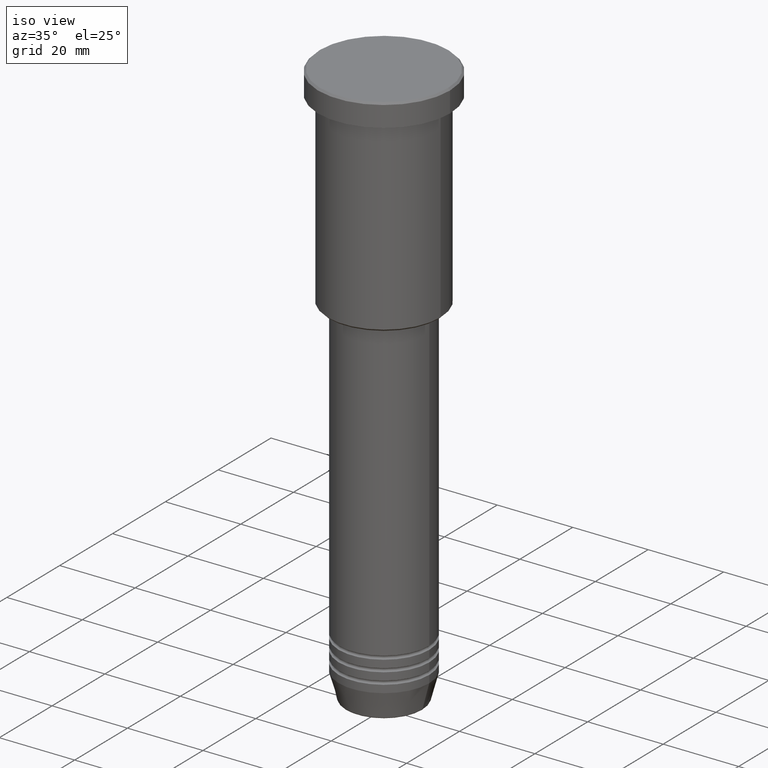
[diagram: clean part render]
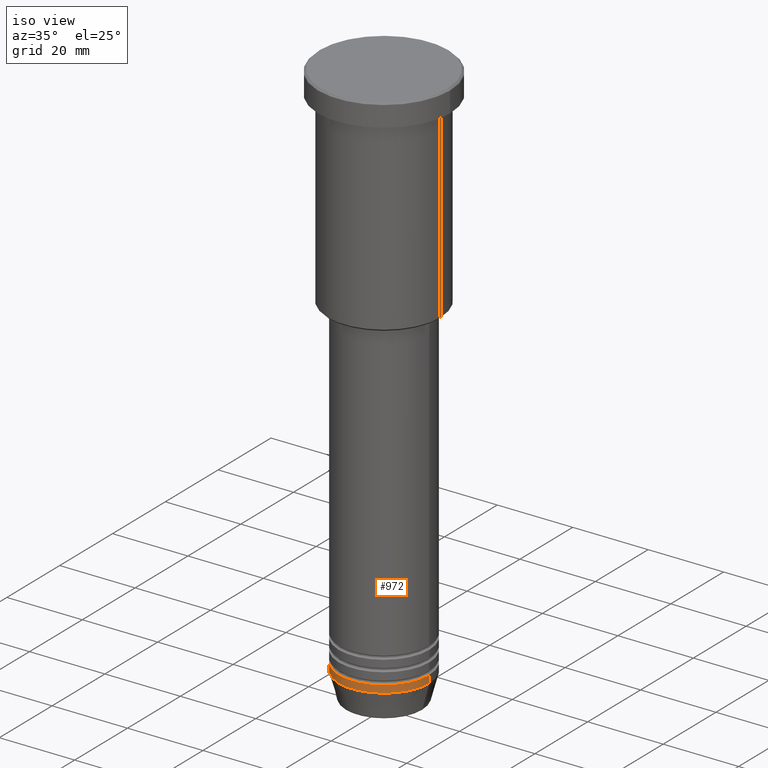
[diagram: same view with one face highlighted and labeled with its STEP entity id]
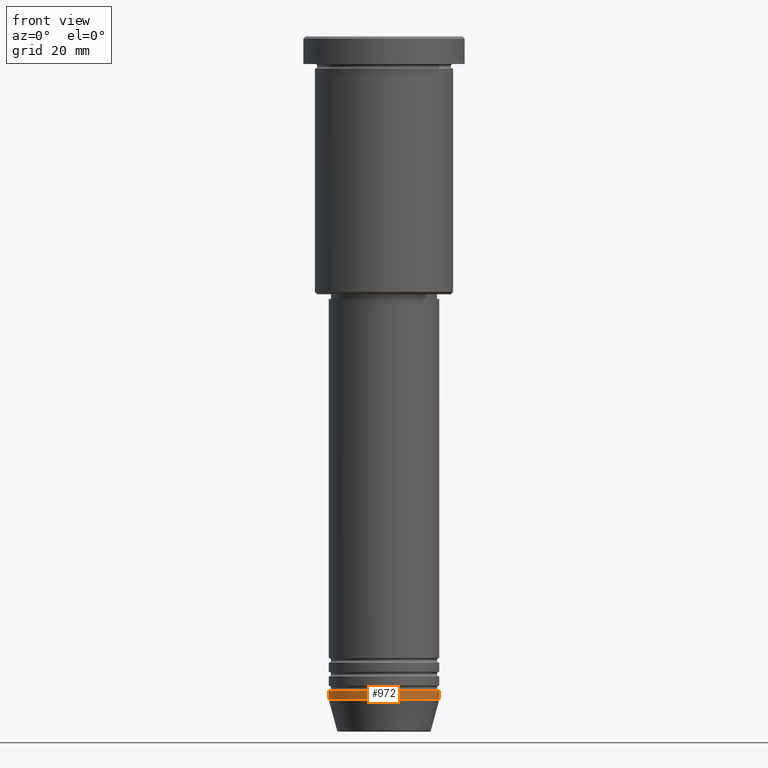
[diagram: same view with one face highlighted and labeled with its STEP entity id]
A machine part, iso view. The second image highlights one B-rep face of the part: STEP entity #972.
A second angle (front view) of the same face is appended — the face is thin or edge-on in the first view.
In plain terms, the highlighted cylindrical surface (partial cylindrical patch) has radius 12 mm, axis along (-0, -0, 1).
Its self-contained STEP definition (entity closure, byte-faithful):
#12 = DIRECTION ( 'NONE',  ( -0.000000000000000000, -0.000000000000000000, 1.000000000000000000 ) ) ;
#73 = CARTESIAN_POINT ( 'NONE',  ( -12.00000000000000000, 1.469576158976823947E-15, 0.000000000000000000 ) ) ;
#75 = EDGE_CURVE ( 'NONE', #247, #775, #1056, .T. ) ;
#101 = CARTESIAN_POINT ( 'NONE',  ( -12.00000000000000000, 1.469576158976823947E-15, -144.0000000000000284 ) ) ;
#147 = DIRECTION ( 'NONE',  ( -0.000000000000000000, -0.000000000000000000, 1.000000000000000000 ) ) ;
#168 = CARTESIAN_POINT ( 'NONE',  ( -12.00000000000000000, 1.469576158976823947E-15, -142.0000000000000284 ) ) ;
#189 = VERTEX_POINT ( 'NONE', #168 ) ;
#211 = ORIENTED_EDGE ( 'NONE', *, *, #237, .F. ) ;
#237 = EDGE_CURVE ( 'NONE', #189, #775, #842, .T. ) ;
#239 = ORIENTED_EDGE ( 'NONE', *, *, #75, .T. ) ;
#247 = VERTEX_POINT ( 'NONE', #579 ) ;
#256 = VECTOR ( 'NONE', #1057, 1000.000000000000000 ) ;
#263 = CARTESIAN_POINT ( 'NONE',  ( 12.00000000000000000, 0.000000000000000000, 0.000000000000000000 ) ) ;
#265 = ORIENTED_EDGE ( 'NONE', *, *, #994, .F. ) ;
#302 = DIRECTION ( 'NONE',  ( 1.000000000000000000, 0.000000000000000000, 0.000000000000000000 ) ) ;
#366 = AXIS2_PLACEMENT_3D ( 'NONE', #1170, #147, #412 ) ;
#412 = DIRECTION ( 'NONE',  ( 1.000000000000000000, 0.000000000000000000, 0.000000000000000000 ) ) ;
#424 = EDGE_CURVE ( 'NONE', #1085, #247, #801, .T. ) ;
#435 = CARTESIAN_POINT ( 'NONE',  ( 12.00000000000000000, 0.000000000000000000, -142.0000000000000284 ) ) ;
#439 = AXIS2_PLACEMENT_3D ( 'NONE', #543, #1063, #909 ) ;
#543 = CARTESIAN_POINT ( 'NONE',  ( 0.000000000000000000, 0.000000000000000000, -144.0000000000000284 ) ) ;
#579 = CARTESIAN_POINT ( 'NONE',  ( 12.00000000000000000, 0.000000000000000000, -144.0000000000000284 ) ) ;
#600 = CYLINDRICAL_SURFACE ( 'NONE', #366, 12.00000000000000000 ) ;
#605 = FACE_OUTER_BOUND ( 'NONE', #996, .T. ) ;
#705 = ORIENTED_EDGE ( 'NONE', *, *, #424, .T. ) ;
#775 = VERTEX_POINT ( 'NONE', #435 ) ;
#801 = CIRCLE ( 'NONE', #439, 12.00000000000000000 ) ;
#842 = CIRCLE ( 'NONE', #992, 12.00000000000000000 ) ;
#860 = VECTOR ( 'NONE', #878, 1000.000000000000000 ) ;
#878 = DIRECTION ( 'NONE',  ( -0.000000000000000000, -0.000000000000000000, 1.000000000000000000 ) ) ;
#909 = DIRECTION ( 'NONE',  ( 1.000000000000000000, 0.000000000000000000, 0.000000000000000000 ) ) ;
#964 = LINE ( 'NONE', #73, #256 ) ;
#972 = ADVANCED_FACE ( 'NONE', ( #605 ), #600, .T. ) ;
#992 = AXIS2_PLACEMENT_3D ( 'NONE', #1125, #12, #302 ) ;
#994 = EDGE_CURVE ( 'NONE', #1085, #189, #964, .T. ) ;
#996 = EDGE_LOOP ( 'NONE', ( #265, #705, #239, #211 ) ) ;
#1056 = LINE ( 'NONE', #263, #860 ) ;
#1057 = DIRECTION ( 'NONE',  ( -0.000000000000000000, -0.000000000000000000, 1.000000000000000000 ) ) ;
#1063 = DIRECTION ( 'NONE',  ( -0.000000000000000000, -0.000000000000000000, 1.000000000000000000 ) ) ;
#1085 = VERTEX_POINT ( 'NONE', #101 ) ;
#1125 = CARTESIAN_POINT ( 'NONE',  ( 0.000000000000000000, 0.000000000000000000, -142.0000000000000284 ) ) ;
#1170 = CARTESIAN_POINT ( 'NONE',  ( 0.000000000000000000, 0.000000000000000000, 0.000000000000000000 ) ) ;